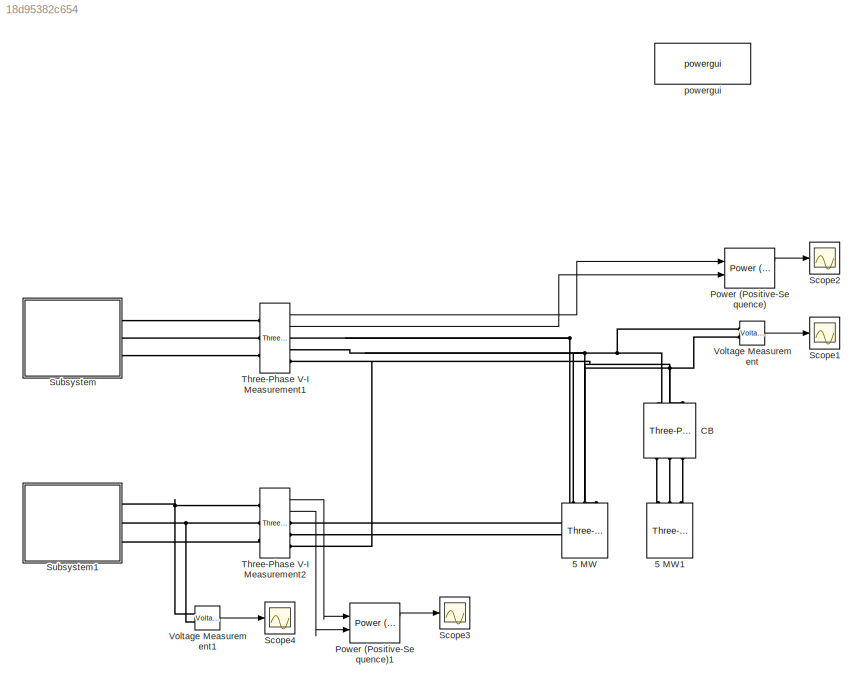
MODEL slx_18d95382c654
KIND model
CONFIG AbsTol = auto
CONFIG FixedStep = Ts
CONFIG MaxStep = auto
CONFIG MinStep = auto
CONFIG RelTol = 1e-3
CONFIG SampleTimeConstraint = Unconstrained
CONFIG Solver = FixedStepAuto
CONFIG SolverMode = Auto
CONFIG SolverName = FixedStepAuto
CONFIG StartTime = 0.0
CONFIG StopTime = 30
BLOCK [Reference] 5 MW  REF=powerlib/Elements/Three-Phase
Parallel RLC Load
  AttributesFormatString = \n
  Ports = [0, 0, 0, 0, 0, 3]
  SourceBlock = powerlib/Elements/Three-Phase\nParallel RLC Load
  SourceType = Three-Phase Parallel RLC Load
BLOCK [Reference] 5 MW1  REF=powerlib/Elements/Three-Phase
Parallel RLC Load
  AttributesFormatString = \n
  Ports = [0, 0, 0, 0, 0, 3]
  SourceBlock = powerlib/Elements/Three-Phase\nParallel RLC Load
  SourceType = Three-Phase Parallel RLC Load
BLOCK [Reference] CB  REF=powerlib/Elements/Three-Phase Breaker
  Ports = [0, 0, 0, 0, 0, 3, 3]
  SourceBlock = powerlib/Elements/Three-Phase Breaker
  SourceType = Three-Phase Breaker
BLOCK [Reference] Power (Positive-Sequence)  REF=powerlib_meascontrol/Measurements/Power
(Positive-Sequence)
  Ports = [2, 2]
  SourceBlock = powerlib_meascontrol/Measurements/Power\n(Positive-Sequence)
  SourceType = Power (Positive-Sequence)
BLOCK [Reference] Power (Positive-Sequence)1  REF=powerlib_meascontrol/Measurements/Power
(Positive-Sequence)
  Ports = [2, 2]
  SourceBlock = powerlib_meascontrol/Measurements/Power\n(Positive-Sequence)
  SourceType = Power (Positive-Sequence)
BLOCK [Scope] Scope1
  Ports = [1]
  ScopeSpecificationString = Simulink.scopes.TimeScopeBlockCfg('CurrentConfiguration', extmgr.ConfigurationSet(extmgr.Configuration('Core','General UI',true),extmgr.Configuration('Core','Source UI',true),extmgr.Configuration('Sources','WiredSimulink',true),extmgr.Configuration('Visuals','Time Domain',true,'SerializedDisplays',{struct('MinYLimReal','-1233.07772','MaxYLimReal','1233.0192','YLabelReal','','MinYLimMag','  0.00000...<+1430ch>
BLOCK [Scope] Scope2
  Ports = [1]
  ScopeSpecificationString = Simulink.scopes.TimeScopeBlockCfg('CurrentConfiguration', extmgr.ConfigurationSet(extmgr.Configuration('Core','General UI',true),extmgr.Configuration('Core','Source UI',true),extmgr.Configuration('Sources','WiredSimulink',true,'DataLoggingVariableName','ScopeData2'),extmgr.Configuration('Visuals','Time Domain',true,'SerializedDisplays',{struct('MinYLimReal','62450031.63533','MaxYLimReal','83672605...<+1510ch>
BLOCK [Scope] Scope3
  Ports = [1]
  ScopeSpecificationString = Simulink.scopes.TimeScopeBlockCfg('CurrentConfiguration', extmgr.ConfigurationSet(extmgr.Configuration('Core','General UI',true),extmgr.Configuration('Core','Source UI',true),extmgr.Configuration('Sources','WiredSimulink',true,'DataLoggingVariableName','ScopeData1'),extmgr.Configuration('Visuals','Time Domain',true,'SerializedDisplays',{struct('MinYLimReal','6362246.41657','MaxYLimReal','9279810.9...<+1505ch>
BLOCK [Scope] Scope4
  Ports = [1]
  ScopeSpecificationString = Simulink.scopes.TimeScopeBlockCfg('CurrentConfiguration', extmgr.ConfigurationSet(extmgr.Configuration('Core','General UI',true),extmgr.Configuration('Core','Source UI',true),extmgr.Configuration('Sources','WiredSimulink',true,'DataLoggingVariableName','ScopeData2'),extmgr.Configuration('Visuals','Time Domain',true,'SerializedDisplays',{struct('MinYLimReal','897.8039','MaxYLimReal','994.06203','YL...<+1408ch>
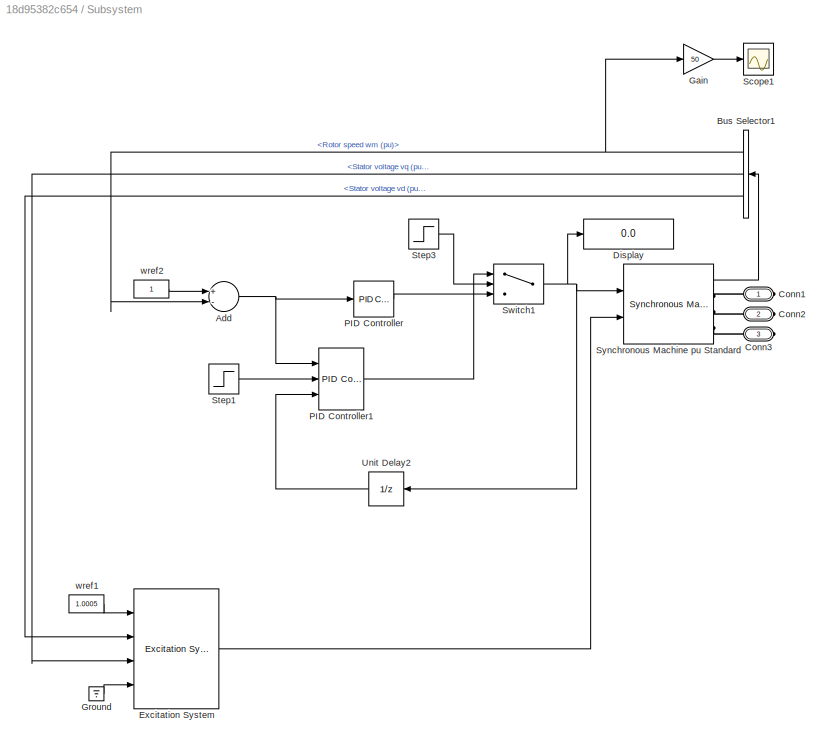
BLOCK [SubSystem] Subsystem
  Ports = [0, 0, 0, 0, 0, 0, 3]
  RequestExecContextInheritance = off
  Variant = off
BLOCK [Sum] Subsystem/Add
  InputSameDT = off
  Inputs = +-
  OutDataTypeStr = Inherit: Inherit via internal rule
  Ports = [2, 1]
  SaturateOnIntegerOverflow = off
BLOCK [BusSelector] Subsystem/Bus Selector1
  OutputSignals = Mechanical.Rotor speed  wm  (pu),dq0 components.Stator voltage  vq (pu),dq0 components.Stator voltage  vd (pu)
  Ports = [1, 3]
BLOCK [PMIOPort] Subsystem/Conn1
  Port = 1
  Side = Right
BLOCK [PMIOPort] Subsystem/Conn2
  Port = 2
  Side = Right
BLOCK [PMIOPort] Subsystem/Conn3
  Port = 3
  Side = Right
BLOCK [Display] Subsystem/Display
  Decimation = 1
  Ports = [1]
BLOCK [Reference] Subsystem/Excitation System  REF=sps_avr/Excitation System
  Ports = [4, 1]
  SourceBlock = sps_avr/Excitation System
  SourceType = Excitation System
BLOCK [Gain] Subsystem/Gain
  Gain = 50
  OutDataTypeStr = Inherit: Inherit via internal rule
  ParamDataTypeStr = Inherit: Inherit via internal rule
  SaturateOnIntegerOverflow = off
BLOCK [Ground] Subsystem/Ground
BLOCK [Reference] Subsystem/PID Controller  REF=simulink/Continuous/PID Controller
  Ports = [1, 1]
  SourceBlock = simulink/Continuous/PID Controller
  SourceType = PID 1dof
BLOCK [Reference] Subsystem/PID Controller1  REF=simulink/Continuous/PID Controller
  Ports = [3, 1]
  SourceBlock = simulink/Continuous/PID Controller
  SourceType = PID 1dof
BLOCK [Scope] Subsystem/Scope1
  Ports = [1]
  ScopeSpecificationString = Simulink.scopes.TimeScopeBlockCfg('CurrentConfiguration', extmgr.ConfigurationSet(extmgr.Configuration('Core','General UI',true),extmgr.Configuration('Core','Source UI',true),extmgr.Configuration('Sources','WiredSimulink',true,'DataLoggingVariableName','ScopeData1'),extmgr.Configuration('Visuals','Time Domain',true,'SerializedDisplays',{struct('MinYLimReal','49.68947','MaxYLimReal','50.04195','YLa...<+1443ch>
BLOCK [Step] Subsystem/Step1
  Time = 10
BLOCK [Step] Subsystem/Step3
  Time = 10
BLOCK [Switch] Subsystem/Switch1
  Criteria = u2 > Threshold
  InputSameDT = off
  SaturateOnIntegerOverflow = off
  Threshold = 0.5
BLOCK [Reference] Subsystem/Synchronous Machine pu Standard  REF=powerlib/Machines/Synchronous Machine
pu Standard
  Ports = [2, 1, 0, 0, 0, 0, 3]
  SourceBlock = powerlib/Machines/Synchronous Machine\npu Standard
  SourceType = Synchronous Machine
BLOCK [UnitDelay] Subsystem/Unit Delay2
  InputProcessing = Elements as channels (sample based)
  SampleTime = Ts
BLOCK [Constant] Subsystem/wref1
  Value = 1.0005
BLOCK [Constant] Subsystem/wref2
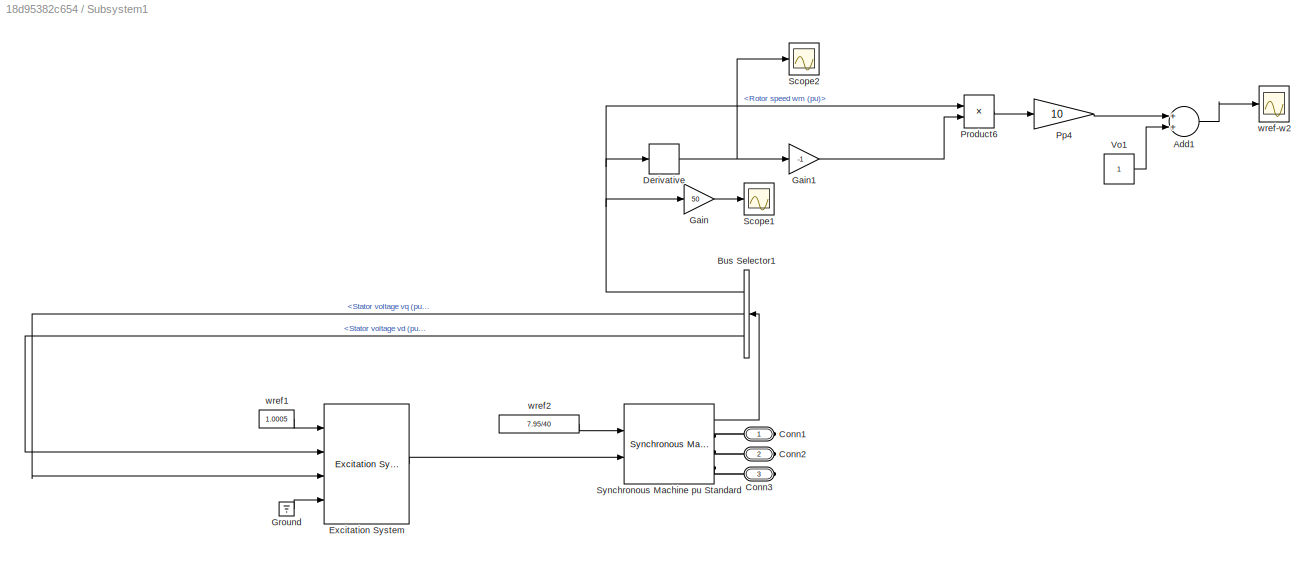
BLOCK [SubSystem] Subsystem1
  Ports = [0, 0, 0, 0, 0, 0, 3]
  RequestExecContextInheritance = off
  Variant = off
BLOCK [Sum] Subsystem1/Add1
  InputSameDT = off
  OutDataTypeStr = Inherit: Inherit via internal rule
  Ports = [2, 1]
  SaturateOnIntegerOverflow = off
BLOCK [BusSelector] Subsystem1/Bus Selector1
  OutputSignals = Mechanical.Rotor speed  wm  (pu),dq0 components.Stator voltage  vq (pu),dq0 components.Stator voltage  vd (pu)
  Ports = [1, 3]
BLOCK [PMIOPort] Subsystem1/Conn1
  Port = 1
  Side = Right
BLOCK [PMIOPort] Subsystem1/Conn2
  Port = 2
  Side = Right
BLOCK [PMIOPort] Subsystem1/Conn3
  Port = 3
  Side = Right
BLOCK [Derivative] Subsystem1/Derivative
BLOCK [Reference] Subsystem1/Excitation System  REF=sps_avr/Excitation System
  Ports = [4, 1]
  SourceBlock = sps_avr/Excitation System
  SourceType = Excitation System
BLOCK [Gain] Subsystem1/Gain
  Gain = 50
  OutDataTypeStr = Inherit: Inherit via internal rule
  ParamDataTypeStr = Inherit: Inherit via internal rule
  SaturateOnIntegerOverflow = off
BLOCK [Gain] Subsystem1/Gain1
  Gain = -1
  OutDataTypeStr = Inherit: Inherit via internal rule
  ParamDataTypeStr = Inherit: Inherit via internal rule
  SaturateOnIntegerOverflow = off
BLOCK [Ground] Subsystem1/Ground
BLOCK [Gain] Subsystem1/Pp4
  Gain = 10
  OutDataTypeStr = Inherit: Inherit via internal rule
  ParamDataTypeStr = Inherit: Inherit via internal rule
  SaturateOnIntegerOverflow = off
BLOCK [Product] Subsystem1/Product6
  InputSameDT = off
  OutDataTypeStr = Inherit: Inherit via internal rule
  Ports = [2, 1]
  RndMeth = Floor
  SaturateOnIntegerOverflow = off
BLOCK [Scope] Subsystem1/Scope1
  Ports = [1]
  ScopeSpecificationString = Simulink.scopes.TimeScopeBlockCfg('CurrentConfiguration', extmgr.ConfigurationSet(extmgr.Configuration('Core','General UI',true),extmgr.Configuration('Core','Source UI',true),extmgr.Configuration('Sources','WiredSimulink',true,'DataLoggingVariableName','ScopeData1'),extmgr.Configuration('Visuals','Time Domain',true,'SerializedDisplays',{struct('MinYLimReal','49.68212','MaxYLimReal','50.06379','YLa...<+1442ch>
BLOCK [Scope] Subsystem1/Scope2
  Ports = [1]
  ScopeSpecificationString = Simulink.scopes.TimeScopeBlockCfg('CurrentConfiguration', extmgr.ConfigurationSet(extmgr.Configuration('Core','General UI',true),extmgr.Configuration('Core','Source UI',true),extmgr.Configuration('Sources','WiredSimulink',true,'DataLoggingVariableName','ScopeData4'),extmgr.Configuration('Visuals','Time Domain',true,'SerializedDisplays',{struct('MinYLimReal','-0.01084','MaxYLimReal','0.00647','YLab...<+1444ch>
BLOCK [Reference] Subsystem1/Synchronous Machine pu Standard  REF=powerlib/Machines/Synchronous Machine
pu Standard
  Ports = [2, 1, 0, 0, 0, 0, 3]
  SourceBlock = powerlib/Machines/Synchronous Machine\npu Standard
  SourceType = Synchronous Machine
BLOCK [Constant] Subsystem1/Vo1
BLOCK [Scope] Subsystem1/wref-w2
  Ports = [1]
  ScopeSpecificationString = Simulink.scopes.TimeScopeBlockCfg('CurrentConfiguration', extmgr.ConfigurationSet(extmgr.Configuration('Core','General UI',true),extmgr.Configuration('Core','Source UI',true),extmgr.Configuration('Sources','WiredSimulink',true,'DataLoggingVariableName','ScopeData3'),extmgr.Configuration('Visuals','Time Domain',true,'SerializedDisplays',{struct('MinYLimReal','0.97628','MaxYLimReal','1.05744','YLabe...<+1433ch>
BLOCK [Constant] Subsystem1/wref1
  Value = 1.0005
BLOCK [Constant] Subsystem1/wref2
  Value = 7.95/40
BLOCK [Reference] Three-Phase V-I Measurement1  REF=powerlib/Measurements/Three-Phase
V-I Measurement
  Ports = [0, 2, 0, 0, 0, 3, 3]
  SourceBlock = powerlib/Measurements/Three-Phase\nV-I Measurement
  SourceType = Three-Phase VI Measurement
BLOCK [Reference] Three-Phase V-I Measurement2  REF=powerlib/Measurements/Three-Phase
V-I Measurement
  Ports = [0, 2, 0, 0, 0, 3, 3]
  SourceBlock = powerlib/Measurements/Three-Phase\nV-I Measurement
  SourceType = Three-Phase VI Measurement
BLOCK [Reference] Voltage Measurement  REF=powerlib/Measurements/Voltage Measurement
  Ports = [0, 1, 0, 0, 0, 2]
  SourceBlock = powerlib/Measurements/Voltage Measurement
  SourceType = Voltage Measurement
  UserDataPersistent = on
BLOCK [Reference] Voltage Measurement1  REF=powerlib/Measurements/Voltage Measurement
  Ports = [0, 1, 0, 0, 0, 2]
  SourceBlock = powerlib/Measurements/Voltage Measurement
  SourceType = Voltage Measurement
  UserDataPersistent = on
BLOCK [Reference] powergui  REF=powerlib/powergui
  Ports = []
  Priority = 2
  SourceBlock = powerlib/powergui
  SourceType = PSB option menu block
LINE Power (Positive-Sequence)1:1 -> Scope3:1
LINE Power (Positive-Sequence):1 -> Scope2:1
NET Subsystem/Add:1 -> Subsystem/PID Controller1:1, Subsystem/PID Controller:1
NET Subsystem/Bus Selector1:1 -> Subsystem/Add:2, Subsystem/Gain:1
LINE Subsystem/Bus Selector1:2 -> Subsystem/Excitation System:3
LINE Subsystem/Bus Selector1:3 -> Subsystem/Excitation System:2
LINE Subsystem/Excitation System:1 -> Subsystem/Synchronous Machine pu Standard:2
LINE Subsystem/Gain:1 -> Subsystem/Scope1:1
LINE Subsystem/Ground:1 -> Subsystem/Excitation System:4
LINE Subsystem/PID Controller1:1 -> Subsystem/Switch1:1
LINE Subsystem/PID Controller:1 -> Subsystem/Switch1:3
LINE Subsystem/Step1:1 -> Subsystem/PID Controller1:2
LINE Subsystem/Step3:1 -> Subsystem/Switch1:2
NET Subsystem/Switch1:1 -> Subsystem/Display:1, Subsystem/Synchronous Machine pu Standard:1, Subsystem/Unit Delay2:1
LINE Subsystem/Synchronous Machine pu Standard:1 -> Subsystem/Bus Selector1:1
LINE Subsystem/Unit Delay2:1 -> Subsystem/PID Controller1:3
LINE Subsystem/wref1:1 -> Subsystem/Excitation System:1
LINE Subsystem/wref2:1 -> Subsystem/Add:1
LINE Subsystem1/Add1:1 -> Subsystem1/wref-w2:1
NET Subsystem1/Bus Selector1:1 -> Subsystem1/Derivative:1, Subsystem1/Gain:1, Subsystem1/Product6:1
LINE Subsystem1/Bus Selector1:2 -> Subsystem1/Excitation System:3
LINE Subsystem1/Bus Selector1:3 -> Subsystem1/Excitation System:2
NET Subsystem1/Derivative:1 -> Subsystem1/Gain1:1, Subsystem1/Scope2:1
LINE Subsystem1/Excitation System:1 -> Subsystem1/Synchronous Machine pu Standard:2
LINE Subsystem1/Gain1:1 -> Subsystem1/Product6:2
LINE Subsystem1/Gain:1 -> Subsystem1/Scope1:1
LINE Subsystem1/Ground:1 -> Subsystem1/Excitation System:4
LINE Subsystem1/Pp4:1 -> Subsystem1/Add1:1
LINE Subsystem1/Product6:1 -> Subsystem1/Pp4:1
LINE Subsystem1/Synchronous Machine pu Standard:1 -> Subsystem1/Bus Selector1:1
LINE Subsystem1/Vo1:1 -> Subsystem1/Add1:2
LINE Subsystem1/wref1:1 -> Subsystem1/Excitation System:1
LINE Subsystem1/wref2:1 -> Subsystem1/Synchronous Machine pu Standard:1
LINE Three-Phase V-I Measurement1:1 -> Power (Positive-Sequence):1
LINE Three-Phase V-I Measurement1:2 -> Power (Positive-Sequence):2
LINE Three-Phase V-I Measurement2:1 -> Power (Positive-Sequence)1:1
LINE Three-Phase V-I Measurement2:2 -> Power (Positive-Sequence)1:2
LINE Voltage Measurement1:1 -> Scope4:1
LINE Voltage Measurement:1 -> Scope1:1
PLINE 5 MW1:LConn1 -- CB:LConn1
PLINE 5 MW1:LConn2 -- CB:LConn2
PLINE 5 MW1:LConn3 -- CB:LConn3
PNET net1: 5 MW:LConn1 -- CB:RConn1 -- Three-Phase V-I Measurement1:RConn1 -- Three-Phase V-I Measurement2:RConn1 -- Voltage Measurement:LConn1
PNET net2: 5 MW:LConn2 -- CB:RConn2 -- Three-Phase V-I Measurement1:RConn2 -- Three-Phase V-I Measurement2:RConn2 -- Voltage Measurement:LConn2
PNET net3: 5 MW:LConn3 -- CB:RConn3 -- Three-Phase V-I Measurement1:RConn3 -- Three-Phase V-I Measurement2:RConn3
PLINE Subsystem/Conn1:RConn1 -- Subsystem/Synchronous Machine pu Standard:RConn1
PLINE Subsystem/Conn2:RConn1 -- Subsystem/Synchronous Machine pu Standard:RConn2
PLINE Subsystem/Conn3:RConn1 -- Subsystem/Synchronous Machine pu Standard:RConn3
PLINE Subsystem1/Conn1:RConn1 -- Subsystem1/Synchronous Machine pu Standard:RConn1
PLINE Subsystem1/Conn2:RConn1 -- Subsystem1/Synchronous Machine pu Standard:RConn2
PLINE Subsystem1/Conn3:RConn1 -- Subsystem1/Synchronous Machine pu Standard:RConn3
PNET net4: Subsystem1:RConn1 -- Three-Phase V-I Measurement2:LConn1 -- Voltage Measurement1:LConn1
PNET net5: Subsystem1:RConn2 -- Three-Phase V-I Measurement2:LConn2 -- Voltage Measurement1:LConn2
PLINE Subsystem1:RConn3 -- Three-Phase V-I Measurement2:LConn3
PLINE Subsystem:RConn1 -- Three-Phase V-I Measurement1:LConn1
PLINE Subsystem:RConn2 -- Three-Phase V-I Measurement1:LConn2
PLINE Subsystem:RConn3 -- Three-Phase V-I Measurement1:LConn3
note: NET lines group one-source signal fan-out (src -> all destinations, sorted); 1:1 wires keep LINE; PNET lines group multi-terminal physical nets as a canonical sorted terminal list (undirected conserving connections); 2-terminal nets keep the pairwise PLINE form
